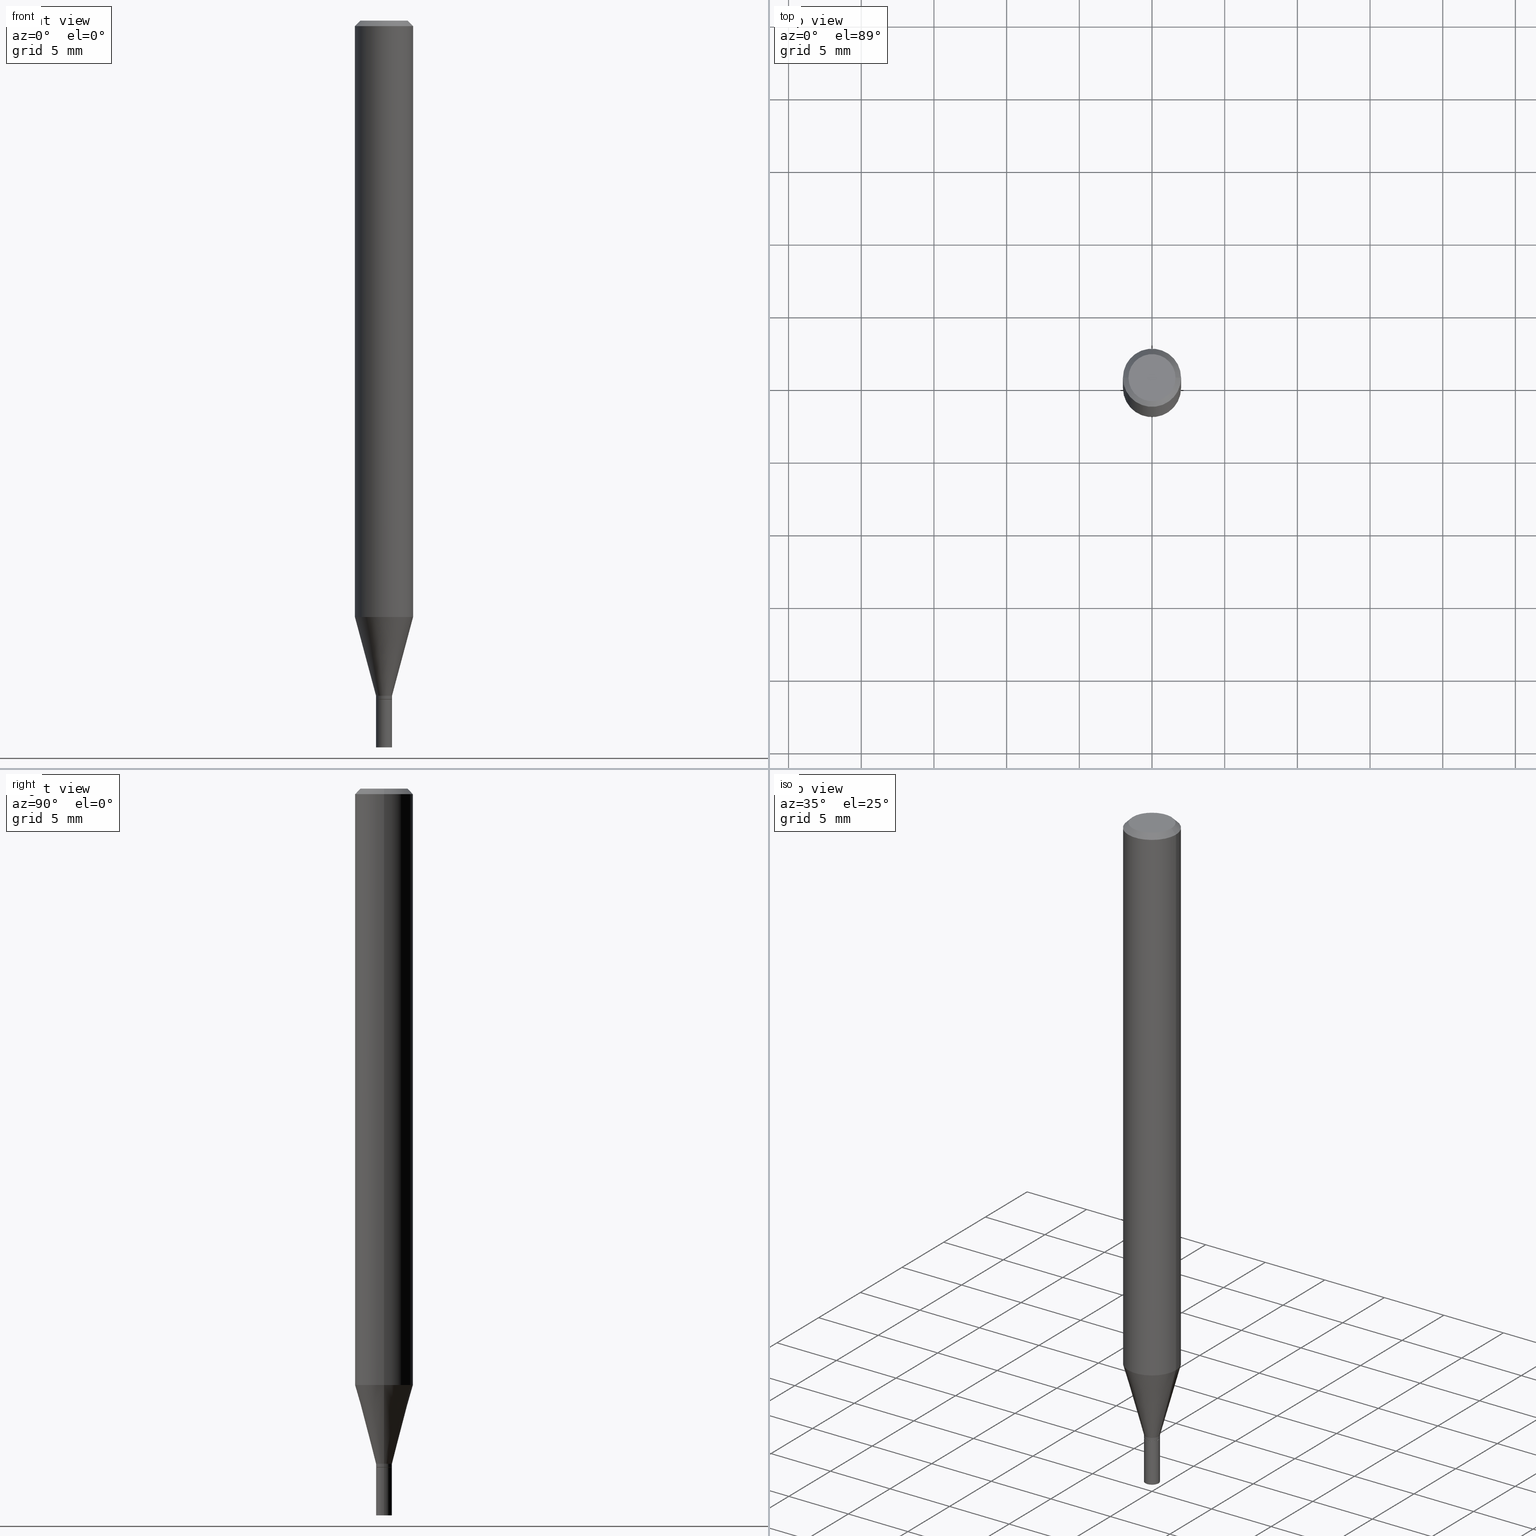
[diagram: canonical four-view strip — front | top / right | iso, engineering-drawing reading convention]
A machine part, canonical four-view strip (front | top / right | iso — engineering-drawing reading convention). The complete STEP part file that produces these views, byte-faithful:
ISO-10303-21;
HEADER;
FILE_DESCRIPTION (( 'STEP AP203' ),
    '1' );
FILE_NAME ('01884.STEP',
    '2024-03-20T02:25:17',
    ( '' ),
    ( '' ),
    'SwSTEP 2.0',
    'SolidWorks 2023',
    '' );
FILE_SCHEMA (( 'CONFIG_CONTROL_DESIGN' ));
ENDSEC;

DATA;
#1 = ADVANCED_FACE ( 'NONE', ( #170 ), #202, .F. ) ;
#2 = DIRECTION ( 'NONE',  ( -2.445468806185136877E-29, 3.491481338843145188E-15, 1.000000000000000000 ) ) ;
#3 = VERTEX_POINT ( 'NONE', #408 ) ;
#4 = DIRECTION ( 'NONE',  ( 1.000000000000000000, -6.982962677686265922E-15, 4.876176775795935793E-29 ) ) ;
#5 = ORIENTED_EDGE ( 'NONE', *, *, #327, .T. ) ;
#6 = ADVANCED_FACE ( 'NONE', ( #345 ), #450, .T. ) ;
#7 = APPROVAL_ROLE ( '' ) ;
#8 = AXIS2_PLACEMENT_3D ( 'NONE', #25, #176, #140 ) ;
#9 = ORIENTED_EDGE ( 'NONE', *, *, #306, .F. ) ;
#10 = VERTEX_POINT ( 'NONE', #168 ) ;
#11 = AXIS2_PLACEMENT_3D ( 'NONE', #279, #52, #412 ) ;
#12 = DATE_AND_TIME ( #45, #400 ) ;
#13 = ADVANCED_BREP_SHAPE_REPRESENTATION ( '01884', ( #180, #21, #11 ), #300 ) ;
#14 = DIRECTION ( 'NONE',  ( -1.000000000000000000, 6.982962677686265922E-15, 0.000000000000000000 ) ) ;
#15 = CYLINDRICAL_SURFACE ( 'NONE', #464, 0.07875000000000000056 ) ;
#16 = ADVANCED_FACE ( 'NONE', ( #382 ), #119, .T. ) ;
#17 = DIRECTION ( 'NONE',  ( -2.445468806185136597E-29, 3.491481338843145583E-15, 1.000000000000000000 ) ) ;
#18 = AXIS2_PLACEMENT_3D ( 'NONE', #405, #430, #36 ) ;
#19 = DIRECTION ( 'NONE',  ( 2.445468806185136597E-29, -3.491481338843145583E-15, -1.000000000000000000 ) ) ;
#20 = CARTESIAN_POINT ( 'NONE',  ( 0.07875000000000000056, -5.926364374071552647E-16, -0.01499999999999999944 ) ) ;
#21 = MANIFOLD_SOLID_BREP ( 'Body-Move/Copy2[2]', #198 ) ;
#22 = AXIS2_PLACEMENT_3D ( 'NONE', #133, #46, #283 ) ;
#23 = ADVANCED_FACE ( 'NONE', ( #130 ), #15, .T. ) ;
#24 = ADVANCED_FACE ( 'NONE', ( #200 ), #411, .F. ) ;
#25 = CARTESIAN_POINT ( 'NONE',  ( 4.471539712109521882E-29, -6.384173628074691775E-15, -1.828500000000000014 ) ) ;
#26 = CC_DESIGN_PERSON_AND_ORGANIZATION_ASSIGNMENT ( #379, #123, ( #74 ) ) ;
#27 = DIRECTION ( 'NONE',  ( 1.000000000000000000, -6.982962677686250144E-15, 0.000000000000000000 ) ) ;
#28 = VECTOR ( 'NONE', #456, 39.37007874015748143 ) ;
#29 = EDGE_CURVE ( 'NONE', #271, #3, #280, .T. ) ;
#30 = PLANE ( 'NONE',  #186 ) ;
#31 = DIRECTION ( 'NONE',  ( 1.000000000000000000, -6.982962677686269866E-15, 0.000000000000000000 ) ) ;
#32 = EDGE_CURVE ( 'NONE', #71, #39, #329, .T. ) ;
#33 = CARTESIAN_POINT ( 'NONE',  ( 0.02165000000000047442, -6.535354770046602662E-15, -1.828500000000000014 ) ) ;
#34 = ORIENTED_EDGE ( 'NONE', *, *, #227, .F. ) ;
#35 = CIRCLE ( 'NONE', #374, 0.07875000000000000056 ) ;
#36 = DIRECTION ( 'NONE',  ( 1.000000000000000000, -6.982962677686265922E-15, 4.876176775795935232E-29 ) ) ;
#37 = EDGE_LOOP ( 'NONE', ( #34, #348, #121, #254 ) ) ;
#38 = CARTESIAN_POINT ( 'NONE',  ( 1.854924686453612983E-44, -2.648340846275329000E-30, -7.585149652132525386E-16 ) ) ;
#39 = VERTEX_POINT ( 'NONE', #277 ) ;
#40 = DIRECTION ( 'NONE',  ( 1.000000000000000000, -6.982962677686265922E-15, 4.947888571036530338E-29 ) ) ;
#41 = ORIENTED_EDGE ( 'NONE', *, *, #179, .F. ) ;
#42 = CIRCLE ( 'NONE', #233, 0.02114999999999999519 ) ;
#43 = CARTESIAN_POINT ( 'NONE',  ( 4.496238947051993332E-29, -6.419437589597009303E-15, -1.838600000000000456 ) ) ;
#44 = ORIENTED_EDGE ( 'NONE', *, *, #384, .T. ) ;
#45 = CALENDAR_DATE ( 2024, 19, 3 ) ;
#46 = DIRECTION ( 'NONE',  ( 2.445468806185136597E-29, -3.491481338843145583E-15, -1.000000000000000000 ) ) ;
#47 = APPLICATION_PROTOCOL_DEFINITION ( 'international standard', 'config_control_design', 1994, #135 ) ;
#48 = VECTOR ( 'NONE', #178, 39.37007874015748143 ) ;
#49 = CARTESIAN_POINT ( 'NONE',  ( 0.07875000000000001443, -6.190046912603718484E-15, -1.615399898887819097 ) ) ;
#50 = AXIS2_PLACEMENT_3D ( 'NONE', #386, #64, #387 ) ;
#51 = DIRECTION ( 'NONE',  ( -1.000000000000000000, 6.982962677686265922E-15, -4.876176775795935793E-29 ) ) ;
#52 = DIRECTION ( 'NONE',  ( 0.000000000000000000, 0.000000000000000000, 1.000000000000000000 ) ) ;
#53 = DIRECTION ( 'NONE',  ( -2.445468806185136597E-29, 3.491481338843145583E-15, 1.000000000000000000 ) ) ;
#54 = AXIS2_PLACEMENT_3D ( 'NONE', #354, #104, #31 ) ;
#55 = CALENDAR_DATE ( 2024, 19, 3 ) ;
#56 = DIRECTION ( 'NONE',  ( 0.7071067811865656694, -2.468850131082446387E-15, 0.7071067811865294761 ) ) ;
#57 = ADVANCED_FACE ( 'NONE', ( #90 ), #445, .T. ) ;
#58 = VECTOR ( 'NONE', #215, 39.37007874015748854 ) ;
#59 = CARTESIAN_POINT ( 'NONE',  ( 0.000000000000000000, 0.000000000000000000, 0.000000000000000000 ) ) ;
#60 = AXIS2_PLACEMENT_3D ( 'NONE', #166, #17, #212 ) ;
#61 = LINE ( 'NONE', #173, #28 ) ;
#62 = ORIENTED_EDGE ( 'NONE', *, *, #303, .T. ) ;
#63 = EDGE_CURVE ( 'NONE', #10, #190, #88, .T. ) ;
#64 = DIRECTION ( 'NONE',  ( -2.445468806185136597E-29, 3.491481338843145583E-15, 1.000000000000000000 ) ) ;
#65 = CARTESIAN_POINT ( 'NONE',  ( 0.07875000000000000056, -6.022805309504406221E-16, -0.01499999999999999944 ) ) ;
#66 = AXIS2_PLACEMENT_3D ( 'NONE', #323, #390, #360 ) ;
#67 = CONICAL_SURFACE ( 'NONE', #207, 0.02165000000000047442, 0.2617993877991499074 ) ;
#68 = DIRECTION ( 'NONE',  ( -2.445468806185136597E-29, 3.491481338843145583E-15, 1.000000000000000000 ) ) ;
#69 = VERTEX_POINT ( 'NONE', #49 ) ;
#70 = DIRECTION ( 'NONE',  ( -2.445468806185136597E-29, 3.491481338843145583E-15, 1.000000000000000000 ) ) ;
#71 = VERTEX_POINT ( 'NONE', #314 ) ;
#72 = DIRECTION ( 'NONE',  ( -2.445468806185136597E-29, 3.491481338843145583E-15, 1.000000000000000000 ) ) ;
#73 = ORIENTED_EDGE ( 'NONE', *, *, #356, .T. ) ;
#74 = PRODUCT_DEFINITION_FORMATION_WITH_SPECIFIED_SOURCE ( 'ANY', '', #84, .NOT_KNOWN. ) ;
#75 = ADVANCED_FACE ( 'NONE', ( #242 ), #67, .T. ) ;
#76 = CARTESIAN_POINT ( 'NONE',  ( 0.07875000000000000056, -5.499083108677934443E-16, 3.839989210939299016E-30 ) ) ;
#77 = ORIENTED_EDGE ( 'NONE', *, *, #103, .T. ) ;
#78 = VECTOR ( 'NONE', #250, 39.37007874015748143 ) ;
#79 = CARTESIAN_POINT ( 'NONE',  ( -0.06375000000000000111, 4.713499807438215436E-16, -7.585149652132556940E-16 ) ) ;
#80 = ORIENTED_EDGE ( 'NONE', *, *, #426, .F. ) ;
#81 = DIRECTION ( 'NONE',  ( -2.445468806185136597E-29, 3.491481338843145583E-15, 1.000000000000000000 ) ) ;
#82 = ORIENTED_EDGE ( 'NONE', *, *, #32, .T. ) ;
#83 = AXIS2_PLACEMENT_3D ( 'NONE', #106, #247, #357 ) ;
#84 = PRODUCT ( '01884', '01884', '', ( #163 ) ) ;
#85 = ORIENTED_EDGE ( 'NONE', *, *, #426, .T. ) ;
#86 = AXIS2_PLACEMENT_3D ( 'NONE', #417, #317, #51 ) ;
#87 = LENGTH_MEASURE_WITH_UNIT ( LENGTH_MEASURE( 0.02539999999999999897 ), #149 );
#88 = LINE ( 'NONE', #239, #298 ) ;
#89 = APPROVAL_STATUS ( 'not_yet_approved' ) ;
#90 = FACE_OUTER_BOUND ( 'NONE', #439, .T. ) ;
#91 = LOCAL_TIME ( 22, 25, 17.00000000000000000, #208 ) ;
#92 = COORDINATED_UNIVERSAL_TIME_OFFSET ( 5, 0, .BEHIND. ) ;
#93 = CARTESIAN_POINT ( 'NONE',  ( 4.813905344975441835E-29, -6.872981015512731707E-15, -1.968500000000000139 ) ) ;
#94 = DATE_AND_TIME ( #126, #91 ) ;
#95 = DIRECTION ( 'NONE',  ( -0.2588190451025211836, 5.211531920934547886E-15, 0.9659258262890679791 ) ) ;
#96 = DIRECTION ( 'NONE',  ( -2.445468806185136597E-29, 3.491481338843145583E-15, 1.000000000000000000 ) ) ;
#97 = AXIS2_PLACEMENT_3D ( 'NONE', #261, #120, #194 ) ;
#98 = CARTESIAN_POINT ( 'NONE',  ( -0.02164999999999999564, 1.538325022920616592E-16, -1.064949447040186851E-30 ) ) ;
#99 = EDGE_CURVE ( 'NONE', #305, #432, #350, .T. ) ;
#100 = ORIENTED_EDGE ( 'NONE', *, *, #303, .F. ) ;
#101 = CARTESIAN_POINT ( 'NONE',  ( -0.07875000000000000056, 5.595524044110789003E-16, -3.873661383575737792E-30 ) ) ;
#102 = AXIS2_PLACEMENT_3D ( 'NONE', #93, #246, #385 ) ;
#103 = EDGE_CURVE ( 'NONE', #190, #432, #214, .T. ) ;
#104 = DIRECTION ( 'NONE',  ( -2.445468806185136597E-29, 3.491481338843145583E-15, 1.000000000000000000 ) ) ;
#105 = ORIENTED_EDGE ( 'NONE', *, *, #196, .T. ) ;
#106 = CARTESIAN_POINT ( 'NONE',  ( 4.471539712109521882E-29, -6.384173628074691775E-15, -1.828500000000000014 ) ) ;
#107 = AXIS2_PLACEMENT_3D ( 'NONE', #172, #389, #27 ) ;
#108 = DIRECTION ( 'NONE',  ( 1.000000000000000000, -6.982962677686245411E-15, 0.000000000000000000 ) ) ;
#109 = EDGE_LOOP ( 'NONE', ( #363, #100 ) ) ;
#110 = EDGE_CURVE ( 'NONE', #190, #271, #61, .T. ) ;
#111 = CARTESIAN_POINT ( 'NONE',  ( 0.000000000000000000, 0.000000000000000000, 0.000000000000000000 ) ) ;
#112 = EDGE_LOOP ( 'NONE', ( #308, #339, #160, #80 ) ) ;
#113 = CYLINDRICAL_SURFACE ( 'NONE', #18, 0.07875000000000000056 ) ;
#114 = CC_DESIGN_APPROVAL ( #187, ( #346 ) ) ;
#115 = ORIENTED_EDGE ( 'NONE', *, *, #245, .F. ) ;
#116 = APPROVAL_PERSON_ORGANIZATION ( #159, #122, #407 ) ;
#117 = DIRECTION ( 'NONE',  ( 1.000000000000000000, -6.982962677686269866E-15, 0.000000000000000000 ) ) ;
#118 = ORIENTED_EDGE ( 'NONE', *, *, #110, .F. ) ;
#119 = CONICAL_SURFACE ( 'NONE', #22, 0.07875000000000000056, 0.7853981633974735921 ) ;
#120 = DIRECTION ( 'NONE',  ( -2.445468806185136597E-29, 3.491481338843145583E-15, 1.000000000000000000 ) ) ;
#121 = ORIENTED_EDGE ( 'NONE', *, *, #245, .T. ) ;
#122 = APPROVAL ( #307, 'UNSPECIFIED' ) ;
#123 = PERSON_AND_ORGANIZATION_ROLE ( 'creator' ) ;
#124 = EDGE_LOOP ( 'NONE', ( #336, #302, #85, #156 ) ) ;
#125 = AXIS2_PLACEMENT_3D ( 'NONE', #181, #225, #188 ) ;
#126 = CALENDAR_DATE ( 2024, 19, 3 ) ;
#127 = DIRECTION ( 'NONE',  ( -2.445468806185136597E-29, 3.491481338843145583E-15, 1.000000000000000000 ) ) ;
#128 = ORIENTED_EDGE ( 'NONE', *, *, #306, .T. ) ;
#129 = APPLICATION_PROTOCOL_DEFINITION ( 'international standard', 'config_control_design', 1994, #195 ) ;
#130 = FACE_OUTER_BOUND ( 'NONE', #351, .T. ) ;
#131 = CIRCLE ( 'NONE', #107, 0.02165000000000019340 ) ;
#132 = COORDINATED_UNIVERSAL_TIME_OFFSET ( 5, 0, .BEHIND. ) ;
#133 = CARTESIAN_POINT ( 'NONE',  ( 3.668203209277705088E-31, -5.237222008264718399E-17, -0.01499999999999999944 ) ) ;
#134 = DIRECTION ( 'NONE',  ( 1.000000000000000000, -6.982962677686265922E-15, 4.876176775795935793E-29 ) ) ;
#135 = APPLICATION_CONTEXT ( 'configuration controlled 3d designs of mechanical parts and assemblies' ) ;
#136 = EDGE_CURVE ( 'NONE', #39, #435, #423, .T. ) ;
#137 = DIRECTION ( 'NONE',  ( 1.000000000000000000, -6.982962677686261977E-15, 0.000000000000000000 ) ) ;
#138 = EDGE_CURVE ( 'NONE', #3, #376, #291, .T. ) ;
#139 = CARTESIAN_POINT ( 'NONE',  ( 3.950410062244785597E-29, -5.640138601735924349E-15, -1.615399898887819097 ) ) ;
#140 = DIRECTION ( 'NONE',  ( 1.000000000000000000, -6.982962677686249356E-15, 0.000000000000000000 ) ) ;
#141 = DIRECTION ( 'NONE',  ( 1.000000000000000000, -6.982962677686265922E-15, 0.000000000000000000 ) ) ;
#142 = ORIENTED_EDGE ( 'NONE', *, *, #99, .T. ) ;
#143 = DIRECTION ( 'NONE',  ( -2.438088387897960049E-29, 3.491481338843145188E-15, 1.000000000000000000 ) ) ;
#144 = VECTOR ( 'NONE', #332, 39.37007874015748854 ) ;
#145 = CC_DESIGN_APPROVAL ( #122, ( #203 ) ) ;
#146 = CARTESIAN_POINT ( 'NONE',  ( 4.496238947051993332E-29, -6.419437589597009303E-15, -1.838600000000000456 ) ) ;
#147 = EDGE_CURVE ( 'NONE', #216, #271, #275, .T. ) ;
#148 = EDGE_LOOP ( 'NONE', ( #449, #388 ) ) ;
#149 =( LENGTH_UNIT ( ) NAMED_UNIT ( * ) SI_UNIT ( $, .METRE. ) );
#150 = EDGE_LOOP ( 'NONE', ( #9, #229, #44, #115 ) ) ;
#151 = CARTESIAN_POINT ( 'NONE',  ( 4.496238947051993332E-29, -6.419437589597009303E-15, -1.838600000000000456 ) ) ;
#152 = VECTOR ( 'NONE', #2, 39.37007874015748143 ) ;
#153 = ORIENTED_EDGE ( 'NONE', *, *, #327, .F. ) ;
#154 = DESIGN_CONTEXT ( 'detailed design', #195, 'design' ) ;
#155 = DIRECTION ( 'NONE',  ( 1.000000000000000000, -6.982962677686265922E-15, 0.000000000000000000 ) ) ;
#156 = ORIENTED_EDGE ( 'NONE', *, *, #222, .F. ) ;
#157 = CC_DESIGN_PERSON_AND_ORGANIZATION_ASSIGNMENT ( #343, #377, ( #74 ) ) ;
#158 = ADVANCED_FACE ( 'NONE', ( #249 ), #30, .F. ) ;
#159 = PERSON_AND_ORGANIZATION ( #175, #420 ) ;
#160 = ORIENTED_EDGE ( 'NONE', *, *, #263, .F. ) ;
#161 = PERSON_AND_ORGANIZATION_ROLE ( 'design_owner' ) ;
#162 = CARTESIAN_POINT ( 'NONE',  ( 0.000000000000000000, 0.000000000000000000, 0.000000000000000000 ) ) ;
#163 = MECHANICAL_CONTEXT ( 'NONE', #135, 'mechanical' ) ;
#164 = DIRECTION ( 'NONE',  ( 1.000000000000000000, -6.982962677686267499E-15, 4.876176775795936353E-29 ) ) ;
#165 = PERSON_AND_ORGANIZATION ( #175, #420 ) ;
#166 = CARTESIAN_POINT ( 'NONE',  ( 4.495016212648899970E-29, -6.417691848927587010E-15, -1.838100000000000289 ) ) ;
#167 = SECURITY_CLASSIFICATION_LEVEL ( 'unclassified' ) ;
#168 = CARTESIAN_POINT ( 'NONE',  ( -0.02114999999999999519, -6.266508573809636109E-15, -1.838600000000000456 ) ) ;
#169 = CONICAL_SURFACE ( 'NONE', #292, 0.02114999999999999519, 0.7853981633974739252 ) ;
#170 = FACE_OUTER_BOUND ( 'NONE', #234, .T. ) ;
#171 = AXIS2_PLACEMENT_3D ( 'NONE', #415, #19, #14 ) ;
#172 = CARTESIAN_POINT ( 'NONE',  ( 4.495016212648899970E-29, -6.417691848927587010E-15, -1.838100000000000289 ) ) ;
#173 = CARTESIAN_POINT ( 'NONE',  ( -0.02165000000000033564, 1.538325022920640751E-16, -1.064949447040203492E-30 ) ) ;
#174 = APPROVAL_PERSON_ORGANIZATION ( #199, #244, #7 ) ;
#175 = PERSON ( 'UNSPECIFIED', 'UNSPECIFIED', 'UNSPECIFIED', ('UNSPECIFIED'), ('UNSPECIFIED'), ('UNSPECIFIED') ) ;
#176 = DIRECTION ( 'NONE',  ( -2.445468806185136597E-29, 3.491481338843145583E-15, 1.000000000000000000 ) ) ;
#177 = LINE ( 'NONE', #326, #48 ) ;
#178 = DIRECTION ( 'NONE',  ( -2.445468806185136877E-29, 3.491481338843145188E-15, 1.000000000000000000 ) ) ;
#179 = EDGE_CURVE ( 'NONE', #265, #435, #444, .T. ) ;
#180 = MANIFOLD_SOLID_BREP ( 'Body-Move/Copy2[1]', #315 ) ;
#181 = CARTESIAN_POINT ( 'NONE',  ( 4.496238947051992772E-29, -6.419437589597007725E-15, -1.838600000000000234 ) ) ;
#182 = CIRCLE ( 'NONE', #50, 0.07875000000000000056 ) ;
#183 = EDGE_LOOP ( 'NONE', ( #118, #77, #334, #224 ) ) ;
#184 = CARTESIAN_POINT ( 'NONE',  ( -0.02164999999999999564, -6.492376800262808008E-15, -1.838600000000000234 ) ) ;
#185 = VERTEX_POINT ( 'NONE', #65 ) ;
#186 = AXIS2_PLACEMENT_3D ( 'NONE', #290, #251, #422 ) ;
#187 = APPROVAL ( #89, 'UNSPECIFIED' ) ;
#188 = DIRECTION ( 'NONE',  ( 1.000000000000000000, -6.982962677686269866E-15, 0.000000000000000000 ) ) ;
#189 = EDGE_CURVE ( 'NONE', #71, #265, #177, .T. ) ;
#190 = VERTEX_POINT ( 'NONE', #330 ) ;
#191 = FACE_OUTER_BOUND ( 'NONE', #109, .T. ) ;
#192 = AXIS2_PLACEMENT_3D ( 'NONE', #59, #68, #452 ) ;
#193 = ORIENTED_EDGE ( 'NONE', *, *, #370, .F. ) ;
#194 = DIRECTION ( 'NONE',  ( 1.000000000000000000, -6.982962677686249356E-15, 0.000000000000000000 ) ) ;
#195 = APPLICATION_CONTEXT ( 'configuration controlled 3d designs of mechanical parts and assemblies' ) ;
#196 = EDGE_CURVE ( 'NONE', #432, #190, #131, .T. ) ;
#197 = VERTEX_POINT ( 'NONE', #361 ) ;
#198 = CLOSED_SHELL ( 'NONE', ( #396, #373, #6, #367, #75, #294, #23, #16, #24, #1, #278, #241 ) ) ;
#199 = PERSON_AND_ORGANIZATION ( #175, #420 ) ;
#200 = FACE_OUTER_BOUND ( 'NONE', #372, .T. ) ;
#201 = PERSON_AND_ORGANIZATION ( #175, #420 ) ;
#202 = PLANE ( 'NONE',  #230 ) ;
#203 = SECURITY_CLASSIFICATION ( '', '', #167 ) ;
#204 = CC_DESIGN_APPROVAL ( #244, ( #74 ) ) ;
#205 = PRODUCT_DEFINITION_SHAPE ( 'NONE', 'NONE',  #346 ) ;
#206 = CC_DESIGN_SECURITY_CLASSIFICATION ( #203, ( #74 ) ) ;
#207 = AXIS2_PLACEMENT_3D ( 'NONE', #413, #53, #210 ) ;
#208 = COORDINATED_UNIVERSAL_TIME_OFFSET ( 5, 0, .BEHIND. ) ;
#209 = APPROVAL_DATE_TIME ( #438, #187 ) ;
#210 = DIRECTION ( 'NONE',  ( 1.000000000000000000, -6.982962677686249356E-15, 0.000000000000000000 ) ) ;
#211 = DATE_TIME_ROLE ( 'classification_date' ) ;
#212 = DIRECTION ( 'NONE',  ( 1.000000000000000000, -6.982962677686250144E-15, 0.000000000000000000 ) ) ;
#213 = AXIS2_PLACEMENT_3D ( 'NONE', #151, #266, #108 ) ;
#214 = CIRCLE ( 'NONE', #60, 0.02165000000000019340 ) ;
#215 = DIRECTION ( 'NONE',  ( 0.7071067811865653363, -7.319954787623314421E-15, -0.7071067811865295871 ) ) ;
#216 = VERTEX_POINT ( 'NONE', #324 ) ;
#217 = LINE ( 'NONE', #20, #58 ) ;
#218 = CYLINDRICAL_SURFACE ( 'NONE', #66, 0.02165000000000033564 ) ;
#219 = CIRCLE ( 'NONE', #325, 0.06375000000000000111 ) ;
#220 = DIRECTION ( 'NONE',  ( -2.445468806185136877E-29, 3.491481338843145188E-15, 1.000000000000000000 ) ) ;
#221 = DIRECTION ( 'NONE',  ( -2.445468806185136597E-29, 3.491481338843145583E-15, 1.000000000000000000 ) ) ;
#222 = EDGE_CURVE ( 'NONE', #3, #69, #182, .T. ) ;
#223 = DIRECTION ( 'NONE',  ( -2.445468806185136597E-29, 3.491481338843145583E-15, 1.000000000000000000 ) ) ;
#224 = ORIENTED_EDGE ( 'NONE', *, *, #236, .F. ) ;
#225 = DIRECTION ( 'NONE',  ( -2.445468806185136597E-29, 3.491481338843145583E-15, 1.000000000000000000 ) ) ;
#226 = ORIENTED_EDGE ( 'NONE', *, *, #384, .F. ) ;
#227 = EDGE_CURVE ( 'NONE', #197, #185, #217, .T. ) ;
#228 = DIRECTION ( 'NONE',  ( 1.000000000000000000, -6.982962677686245411E-15, 0.000000000000000000 ) ) ;
#229 = ORIENTED_EDGE ( 'NONE', *, *, #227, .T. ) ;
#230 = AXIS2_PLACEMENT_3D ( 'NONE', #443, #312, #134 ) ;
#231 = ORIENTED_EDGE ( 'NONE', *, *, #63, .T. ) ;
#232 = FACE_OUTER_BOUND ( 'NONE', #429, .T. ) ;
#233 = AXIS2_PLACEMENT_3D ( 'NONE', #43, #70, #228 ) ;
#234 = EDGE_LOOP ( 'NONE', ( #153, #463 ) ) ;
#235 = COORDINATED_UNIVERSAL_TIME_OFFSET ( 5, 0, .BEHIND. ) ;
#236 = EDGE_CURVE ( 'NONE', #271, #216, #359, .T. ) ;
#237 = EDGE_LOOP ( 'NONE', ( #437, #333, #226, #369 ) ) ;
#238 = APPROVAL_DATE_TIME ( #276, #244 ) ;
#239 = CARTESIAN_POINT ( 'NONE',  ( -0.02114999999999999519, -6.269157800983748098E-15, -1.838600000000000456 ) ) ;
#240 = CARTESIAN_POINT ( 'NONE',  ( 0.02114999999999999519, -6.567127250230073238E-15, -1.838600000000000456 ) ) ;
#241 = ADVANCED_FACE ( 'NONE', ( #284 ), #218, .T. ) ;
#242 = FACE_OUTER_BOUND ( 'NONE', #112, .T. ) ;
#243 = VECTOR ( 'NONE', #220, 39.37007874015748143 ) ;
#244 = APPROVAL ( #273, 'UNSPECIFIED' ) ;
#245 = EDGE_CURVE ( 'NONE', #466, #376, #358, .T. ) ;
#246 = DIRECTION ( 'NONE',  ( -2.445468806185136597E-29, 3.491481338843145583E-15, 1.000000000000000000 ) ) ;
#247 = DIRECTION ( 'NONE',  ( -2.445468806185136597E-29, 3.491481338843145583E-15, 1.000000000000000000 ) ) ;
#248 = LOCAL_TIME ( 22, 25, 17.00000000000000000, #132 ) ;
#249 = FACE_OUTER_BOUND ( 'NONE', #148, .T. ) ;
#250 = DIRECTION ( 'NONE',  ( -2.445468806185136877E-29, 3.491481338843145188E-15, 1.000000000000000000 ) ) ;
#251 = DIRECTION ( 'NONE',  ( 2.438088387897960049E-29, -3.491481338843145188E-15, -1.000000000000000000 ) ) ;
#252 = AXIS2_PLACEMENT_3D ( 'NONE', #421, #221, #286 ) ;
#253 = CARTESIAN_POINT ( 'NONE',  ( 0.02164999999999999564, -6.570618731568915456E-15, -1.838600000000000234 ) ) ;
#254 = ORIENTED_EDGE ( 'NONE', *, *, #256, .T. ) ;
#255 = CARTESIAN_POINT ( 'NONE',  ( 3.668203209277705088E-31, -5.237222008264718399E-17, -0.01499999999999999944 ) ) ;
#256 = EDGE_CURVE ( 'NONE', #376, #185, #35, .T. ) ;
#257 = CARTESIAN_POINT ( 'NONE',  ( -0.07875000000000000056, -2.286703006498207110E-15, -0.01499999999999999944 ) ) ;
#258 = EDGE_LOOP ( 'NONE', ( #395, #62, #342, #459 ) ) ;
#259 = DIMENSIONAL_EXPONENTS ( 1.000000000000000000, 0.000000000000000000, 0.000000000000000000, 0.000000000000000000, 0.000000000000000000, 0.000000000000000000, 0.000000000000000000 ) ;
#260 = CIRCLE ( 'NONE', #252, 0.02114999999999999519 ) ;
#261 = CARTESIAN_POINT ( 'NONE',  ( 4.471539712109521882E-29, -6.384173628074691775E-15, -1.828500000000000014 ) ) ;
#262 = ORIENTED_EDGE ( 'NONE', *, *, #63, .F. ) ;
#263 = EDGE_CURVE ( 'NONE', #69, #3, #425, .T. ) ;
#264 = LINE ( 'NONE', #33, #144 ) ;
#265 = VERTEX_POINT ( 'NONE', #253 ) ;
#266 = DIRECTION ( 'NONE',  ( -2.445468806185136597E-29, 3.491481338843145583E-15, 1.000000000000000000 ) ) ;
#267 = EDGE_LOOP ( 'NONE', ( #5, #231, #287, #366 ) ) ;
#268 =( NAMED_UNIT ( * ) PLANE_ANGLE_UNIT ( ) SI_UNIT ( $, .RADIAN. ) );
#269 = ADVANCED_FACE ( 'NONE', ( #392 ), #289, .T. ) ;
#270 = CONICAL_SURFACE ( 'NONE', #213, 0.02114999999999999519, 0.7853981633974739252 ) ;
#271 = VERTEX_POINT ( 'NONE', #460 ) ;
#272 = EDGE_CURVE ( 'NONE', #10, #305, #260, .T. ) ;
#273 = APPROVAL_STATUS ( 'not_yet_approved' ) ;
#274 = ORIENTED_EDGE ( 'NONE', *, *, #272, .T. ) ;
#275 = CIRCLE ( 'NONE', #8, 0.02165000000000047442 ) ;
#276 = DATE_AND_TIME ( #55, #399 ) ;
#277 = CARTESIAN_POINT ( 'NONE',  ( -0.02164999999999999564, -6.492376800262808008E-15, -1.968500000000000139 ) ) ;
#278 = ADVANCED_FACE ( 'NONE', ( #232 ), #169, .T. ) ;
#279 = CARTESIAN_POINT ( 'NONE',  ( 0.000000000000000000, 0.000000000000000000, 0.000000000000000000 ) ) ;
#280 = LINE ( 'NONE', #448, #457 ) ;
#281 = CC_DESIGN_DATE_AND_TIME_ASSIGNMENT ( #416, #211, ( #203 ) ) ;
#282 = CALENDAR_DATE ( 2024, 19, 3 ) ;
#283 = DIRECTION ( 'NONE',  ( -1.000000000000000000, 6.982962677686265922E-15, 0.000000000000000000 ) ) ;
#284 = FACE_OUTER_BOUND ( 'NONE', #183, .T. ) ;
#285 = AXIS2_PLACEMENT_3D ( 'NONE', #383, #127, #164 ) ;
#286 = DIRECTION ( 'NONE',  ( 1.000000000000000000, -6.982962677686245411E-15, 0.000000000000000000 ) ) ;
#287 = ORIENTED_EDGE ( 'NONE', *, *, #196, .F. ) ;
#288 = APPROVAL_PERSON_ORGANIZATION ( #310, #187, #441 ) ;
#289 = CYLINDRICAL_SURFACE ( 'NONE', #192, 0.02164999999999999564 ) ;
#290 = CARTESIAN_POINT ( 'NONE',  ( 1.511811419719525975E-16, 0.02164999999999357716, -1.838600000000000234 ) ) ;
#291 = LINE ( 'NONE', #101, #78 ) ;
#292 = AXIS2_PLACEMENT_3D ( 'NONE', #146, #81, #297 ) ;
#293 = CARTESIAN_POINT ( 'NONE',  ( 0.02165000000000033564, -1.511811419719099991E-16, 1.055692271959836253E-30 ) ) ;
#294 = ADVANCED_FACE ( 'NONE', ( #295 ), #337, .T. ) ;
#295 = FACE_OUTER_BOUND ( 'NONE', #124, .T. ) ;
#296 = ORIENTED_EDGE ( 'NONE', *, *, #418, .T. ) ;
#297 = DIRECTION ( 'NONE',  ( 1.000000000000000000, -6.982962677686245411E-15, 0.000000000000000000 ) ) ;
#298 = VECTOR ( 'NONE', #380, 39.37007874015748143 ) ;
#299 = EDGE_LOOP ( 'NONE', ( #105, #355, #404, #193 ) ) ;
#300 =( GEOMETRIC_REPRESENTATION_CONTEXT ( 3 ) GLOBAL_UNCERTAINTY_ASSIGNED_CONTEXT ( ( #453 ) ) GLOBAL_UNIT_ASSIGNED_CONTEXT ( ( #313, #268, #316 ) ) REPRESENTATION_CONTEXT ( 'NONE', 'WORKASPACE' ) );
#301 = PLANE ( 'NONE',  #320 ) ;
#302 = ORIENTED_EDGE ( 'NONE', *, *, #236, .T. ) ;
#303 = EDGE_CURVE ( 'NONE', #39, #71, #455, .T. ) ;
#304 = CYLINDRICAL_SURFACE ( 'NONE', #364, 0.02165000000000033564 ) ;
#305 = VERTEX_POINT ( 'NONE', #393 ) ;
#306 = EDGE_CURVE ( 'NONE', #197, #466, #219, .T. ) ;
#307 = APPROVAL_STATUS ( 'not_yet_approved' ) ;
#308 = ORIENTED_EDGE ( 'NONE', *, *, #147, .T. ) ;
#309 = PRODUCT_RELATED_PRODUCT_CATEGORY ( 'detail', '', ( #84 ) ) ;
#310 = PERSON_AND_ORGANIZATION ( #175, #420 ) ;
#311 = AXIS2_PLACEMENT_3D ( 'NONE', #255, #223, #155 ) ;
#312 = DIRECTION ( 'NONE',  ( -2.438088387897960049E-29, 3.491481338843145188E-15, 1.000000000000000000 ) ) ;
#313 =( CONVERSION_BASED_UNIT ( 'INCH', #87 ) LENGTH_UNIT ( ) NAMED_UNIT ( #259 ) );
#314 = CARTESIAN_POINT ( 'NONE',  ( 0.02164999999999999564, -7.024162157484639438E-15, -1.968500000000000139 ) ) ;
#315 = CLOSED_SHELL ( 'NONE', ( #57, #352, #269, #158 ) ) ;
#316 =( NAMED_UNIT ( * ) SI_UNIT ( $, .STERADIAN. ) SOLID_ANGLE_UNIT ( ) );
#317 = DIRECTION ( 'NONE',  ( 2.438088387897960049E-29, -3.491481338843145188E-15, -1.000000000000000000 ) ) ;
#318 = PERSON_AND_ORGANIZATION ( #175, #420 ) ;
#319 = ORIENTED_EDGE ( 'NONE', *, *, #256, .F. ) ;
#320 = AXIS2_PLACEMENT_3D ( 'NONE', #338, #143, #4 ) ;
#321 = DIRECTION ( 'NONE',  ( -2.445468806185136597E-29, 3.491481338843145583E-15, 1.000000000000000000 ) ) ;
#322 = SHAPE_DEFINITION_REPRESENTATION ( #205, #13 ) ;
#323 = CARTESIAN_POINT ( 'NONE',  ( 0.000000000000000000, 0.000000000000000000, 0.000000000000000000 ) ) ;
#324 = CARTESIAN_POINT ( 'NONE',  ( 0.02165000000000047442, -6.535354770046602662E-15, -1.828500000000000014 ) ) ;
#325 = AXIS2_PLACEMENT_3D ( 'NONE', #38, #72, #40 ) ;
#326 = CARTESIAN_POINT ( 'NONE',  ( 0.02164999999999999564, -1.511811419719076571E-16, 1.055692271959819963E-30 ) ) ;
#327 = EDGE_CURVE ( 'NONE', #305, #10, #42, .T. ) ;
#328 = CARTESIAN_POINT ( 'NONE',  ( 3.668203209277705088E-31, -5.237222008264718399E-17, -0.01499999999999999944 ) ) ;
#329 = CIRCLE ( 'NONE', #102, 0.02164999999999999564 ) ;
#330 = CARTESIAN_POINT ( 'NONE',  ( -0.02165000000000019340, -6.263859346635524119E-15, -1.838100000000000289 ) ) ;
#331 = CIRCLE ( 'NONE', #125, 0.02164999999999999564 ) ;
#332 = DIRECTION ( 'NONE',  ( 0.2588190451025211836, 1.565188264969622559E-15, 0.9659258262890679791 ) ) ;
#333 = ORIENTED_EDGE ( 'NONE', *, *, #138, .T. ) ;
#334 = ORIENTED_EDGE ( 'NONE', *, *, #370, .T. ) ;
#335 = DIRECTION ( 'NONE',  ( -2.445468806185136597E-29, 3.491481338843145583E-15, 1.000000000000000000 ) ) ;
#336 = ORIENTED_EDGE ( 'NONE', *, *, #29, .F. ) ;
#337 = CONICAL_SURFACE ( 'NONE', #97, 0.02165000000000047442, 0.2617993877991499074 ) ;
#338 = CARTESIAN_POINT ( 'NONE',  ( 4.848906058769445083E-29, -6.822858001242805551E-15, -1.968500000000000139 ) ) ;
#339 = ORIENTED_EDGE ( 'NONE', *, *, #29, .T. ) ;
#340 = LINE ( 'NONE', #293, #353 ) ;
#341 = ORIENTED_EDGE ( 'NONE', *, *, #189, .F. ) ;
#342 = ORIENTED_EDGE ( 'NONE', *, *, #189, .T. ) ;
#343 = PERSON_AND_ORGANIZATION ( #175, #420 ) ;
#344 = LOCAL_TIME ( 22, 25, 17.00000000000000000, #347 ) ;
#345 = FACE_OUTER_BOUND ( 'NONE', #150, .T. ) ;
#346 = PRODUCT_DEFINITION ( 'UNKNOWN', '', #74, #154 ) ;
#347 = COORDINATED_UNIVERSAL_TIME_OFFSET ( 5, 0, .BEHIND. ) ;
#348 = ORIENTED_EDGE ( 'NONE', *, *, #418, .F. ) ;
#349 = DATE_TIME_ROLE ( 'creation_date' ) ;
#350 = LINE ( 'NONE', #240, #398 ) ;
#351 = EDGE_LOOP ( 'NONE', ( #406, #402, #73, #319 ) ) ;
#352 = ADVANCED_FACE ( 'NONE', ( #191 ), #301, .F. ) ;
#353 = VECTOR ( 'NONE', #427, 39.37007874015748143 ) ;
#354 = CARTESIAN_POINT ( 'NONE',  ( 4.496238947051992772E-29, -6.419437589597007725E-15, -1.838600000000000234 ) ) ;
#355 = ORIENTED_EDGE ( 'NONE', *, *, #110, .T. ) ;
#356 = EDGE_CURVE ( 'NONE', #69, #185, #365, .T. ) ;
#357 = DIRECTION ( 'NONE',  ( 1.000000000000000000, -6.982962677686249356E-15, 0.000000000000000000 ) ) ;
#358 = LINE ( 'NONE', #454, #433 ) ;
#359 = CIRCLE ( 'NONE', #83, 0.02165000000000047442 ) ;
#360 = DIRECTION ( 'NONE',  ( 1.000000000000000000, -6.982962677686265922E-15, 4.876176775795934672E-29 ) ) ;
#361 = CARTESIAN_POINT ( 'NONE',  ( 0.06375000000000000111, -5.149965923825465084E-16, -7.585149652132491859E-16 ) ) ;
#362 = DIRECTION ( 'NONE',  ( 1.000000000000000000, -6.982962677686265922E-15, 4.947888571036530338E-29 ) ) ;
#363 = ORIENTED_EDGE ( 'NONE', *, *, #32, .F. ) ;
#364 = AXIS2_PLACEMENT_3D ( 'NONE', #111, #401, #434 ) ;
#365 = LINE ( 'NONE', #76, #152 ) ;
#366 = ORIENTED_EDGE ( 'NONE', *, *, #99, .F. ) ;
#367 = ADVANCED_FACE ( 'NONE', ( #375 ), #113, .T. ) ;
#368 = FACE_OUTER_BOUND ( 'NONE', #299, .T. ) ;
#369 = ORIENTED_EDGE ( 'NONE', *, *, #356, .F. ) ;
#370 = EDGE_CURVE ( 'NONE', #432, #216, #340, .T. ) ;
#371 = CARTESIAN_POINT ( 'NONE',  ( 4.813905344975441835E-29, -6.872981015512731707E-15, -1.968500000000000139 ) ) ;
#372 = EDGE_LOOP ( 'NONE', ( #296, #128 ) ) ;
#373 = ADVANCED_FACE ( 'NONE', ( #428 ), #270, .T. ) ;
#374 = AXIS2_PLACEMENT_3D ( 'NONE', #328, #458, #141 ) ;
#375 = FACE_OUTER_BOUND ( 'NONE', #237, .T. ) ;
#376 = VERTEX_POINT ( 'NONE', #257 ) ;
#377 = PERSON_AND_ORGANIZATION_ROLE ( 'design_supplier' ) ;
#378 = ORIENTED_EDGE ( 'NONE', *, *, #103, .F. ) ;
#379 = PERSON_AND_ORGANIZATION ( #175, #420 ) ;
#380 = DIRECTION ( 'NONE',  ( -0.7071067811865656694, 7.493145998870420424E-15, 0.7071067811865294761 ) ) ;
#381 = CIRCLE ( 'NONE', #311, 0.07875000000000000056 ) ;
#382 = FACE_OUTER_BOUND ( 'NONE', #37, .T. ) ;
#383 = CARTESIAN_POINT ( 'NONE',  ( 0.000000000000000000, 0.000000000000000000, 0.000000000000000000 ) ) ;
#384 = EDGE_CURVE ( 'NONE', #185, #376, #381, .T. ) ;
#385 = DIRECTION ( 'NONE',  ( 1.000000000000000000, -6.982962677686269866E-15, 0.000000000000000000 ) ) ;
#386 = CARTESIAN_POINT ( 'NONE',  ( 3.950410062244785597E-29, -5.640138601735924349E-15, -1.615399898887819097 ) ) ;
#387 = DIRECTION ( 'NONE',  ( 1.000000000000000000, -6.982962677686261977E-15, 0.000000000000000000 ) ) ;
#388 = ORIENTED_EDGE ( 'NONE', *, *, #431, .T. ) ;
#389 = DIRECTION ( 'NONE',  ( -2.445468806185136597E-29, 3.491481338843145583E-15, 1.000000000000000000 ) ) ;
#390 = DIRECTION ( 'NONE',  ( -2.445468806185136597E-29, 3.491481338843145583E-15, 1.000000000000000000 ) ) ;
#391 = AXIS2_PLACEMENT_3D ( 'NONE', #139, #96, #137 ) ;
#392 = FACE_OUTER_BOUND ( 'NONE', #258, .T. ) ;
#393 = CARTESIAN_POINT ( 'NONE',  ( 0.02114999999999999519, -6.567127250230073238E-15, -1.838600000000000456 ) ) ;
#394 = CC_DESIGN_PERSON_AND_ORGANIZATION_ASSIGNMENT ( #318, #447, ( #203 ) ) ;
#395 = ORIENTED_EDGE ( 'NONE', *, *, #136, .F. ) ;
#396 = ADVANCED_FACE ( 'NONE', ( #368 ), #304, .T. ) ;
#397 = CIRCLE ( 'NONE', #461, 0.06375000000000000111 ) ;
#398 = VECTOR ( 'NONE', #56, 39.37007874015748143 ) ;
#399 = LOCAL_TIME ( 22, 25, 17.00000000000000000, #92 ) ;
#400 = LOCAL_TIME ( 22, 25, 17.00000000000000000, #235 ) ;
#401 = DIRECTION ( 'NONE',  ( -2.445468806185136597E-29, 3.491481338843145583E-15, 1.000000000000000000 ) ) ;
#402 = ORIENTED_EDGE ( 'NONE', *, *, #222, .T. ) ;
#403 = CARTESIAN_POINT ( 'NONE',  ( 0.02165000000000019340, -6.568872990899495530E-15, -1.838100000000000289 ) ) ;
#404 = ORIENTED_EDGE ( 'NONE', *, *, #147, .F. ) ;
#405 = CARTESIAN_POINT ( 'NONE',  ( 0.000000000000000000, 0.000000000000000000, 0.000000000000000000 ) ) ;
#406 = ORIENTED_EDGE ( 'NONE', *, *, #138, .F. ) ;
#407 = APPROVAL_ROLE ( '' ) ;
#408 = CARTESIAN_POINT ( 'NONE',  ( -0.07875000000000001443, -5.080586197324846336E-15, -1.615399898887819097 ) ) ;
#409 = PERSON_AND_ORGANIZATION_ROLE ( 'creator' ) ;
#410 = CC_DESIGN_PERSON_AND_ORGANIZATION_ASSIGNMENT ( #165, #161, ( #84 ) ) ;
#411 = PLANE ( 'NONE',  #86 ) ;
#412 = DIRECTION ( 'NONE',  ( 1.000000000000000000, 0.000000000000000000, 0.000000000000000000 ) ) ;
#413 = CARTESIAN_POINT ( 'NONE',  ( 4.471539712109521882E-29, -6.384173628074691775E-15, -1.828500000000000014 ) ) ;
#414 = CALENDAR_DATE ( 2024, 19, 3 ) ;
#415 = CARTESIAN_POINT ( 'NONE',  ( 3.668203209277705088E-31, -5.237222008264718399E-17, -0.01499999999999999944 ) ) ;
#416 = DATE_AND_TIME ( #282, #248 ) ;
#417 = CARTESIAN_POINT ( 'NONE',  ( 4.451638707024993845E-16, 0.06375000000000000111, -6.018394179578767011E-16 ) ) ;
#418 = EDGE_CURVE ( 'NONE', #466, #197, #397, .T. ) ;
#419 = DIRECTION ( 'NONE',  ( -0.7071067811865653363, 2.468850131082444021E-15, -0.7071067811865295871 ) ) ;
#420 = ORGANIZATION ( 'UNSPECIFIED', 'UNSPECIFIED', '' ) ;
#421 = CARTESIAN_POINT ( 'NONE',  ( 4.496238947051993332E-29, -6.419437589597009303E-15, -1.838600000000000456 ) ) ;
#422 = DIRECTION ( 'NONE',  ( -1.000000000000000000, 6.982962677686265922E-15, -4.876176775795935793E-29 ) ) ;
#423 = LINE ( 'NONE', #98, #243 ) ;
#424 = ORIENTED_EDGE ( 'NONE', *, *, #136, .T. ) ;
#425 = CIRCLE ( 'NONE', #391, 0.07875000000000000056 ) ;
#426 = EDGE_CURVE ( 'NONE', #216, #69, #264, .T. ) ;
#427 = DIRECTION ( 'NONE',  ( -2.445468806185136877E-29, 3.491481338843145188E-15, 1.000000000000000000 ) ) ;
#428 = FACE_OUTER_BOUND ( 'NONE', #267, .T. ) ;
#429 = EDGE_LOOP ( 'NONE', ( #262, #274, #142, #378 ) ) ;
#430 = DIRECTION ( 'NONE',  ( -2.445468806185136597E-29, 3.491481338843145583E-15, 1.000000000000000000 ) ) ;
#431 = EDGE_CURVE ( 'NONE', #435, #265, #331, .T. ) ;
#432 = VERTEX_POINT ( 'NONE', #403 ) ;
#433 = VECTOR ( 'NONE', #419, 39.37007874015748854 ) ;
#434 = DIRECTION ( 'NONE',  ( 1.000000000000000000, -6.982962677686265922E-15, 4.876176775795934672E-29 ) ) ;
#435 = VERTEX_POINT ( 'NONE', #184 ) ;
#436 = CARTESIAN_POINT ( 'NONE',  ( 1.854924686453612983E-44, -2.648340846275329000E-30, -7.585149652132525386E-16 ) ) ;
#437 = ORIENTED_EDGE ( 'NONE', *, *, #263, .T. ) ;
#438 = DATE_AND_TIME ( #414, #344 ) ;
#439 = EDGE_LOOP ( 'NONE', ( #82, #424, #41, #341 ) ) ;
#440 = AXIS2_PLACEMENT_3D ( 'NONE', #371, #335, #117 ) ;
#441 = APPROVAL_ROLE ( '' ) ;
#442 = DIRECTION ( 'NONE',  ( 1.000000000000000000, -6.982962677686265922E-15, 4.876176775795935232E-29 ) ) ;
#443 = CARTESIAN_POINT ( 'NONE',  ( 4.496238947051993332E-29, -6.419437589597009303E-15, -1.838600000000000456 ) ) ;
#444 = CIRCLE ( 'NONE', #54, 0.02164999999999999564 ) ;
#445 = CYLINDRICAL_SURFACE ( 'NONE', #285, 0.02164999999999999564 ) ;
#446 = CC_DESIGN_PERSON_AND_ORGANIZATION_ASSIGNMENT ( #201, #409, ( #346 ) ) ;
#447 = PERSON_AND_ORGANIZATION_ROLE ( 'classification_officer' ) ;
#448 = CARTESIAN_POINT ( 'NONE',  ( -0.02165000000000047442, -6.230341125782626517E-15, -1.828500000000000014 ) ) ;
#449 = ORIENTED_EDGE ( 'NONE', *, *, #179, .T. ) ;
#450 = CONICAL_SURFACE ( 'NONE', #171, 0.07875000000000000056, 0.7853981633974735921 ) ;
#451 = APPROVAL_DATE_TIME ( #12, #122 ) ;
#452 = DIRECTION ( 'NONE',  ( 1.000000000000000000, -6.982962677686267499E-15, 4.876176775795936353E-29 ) ) ;
#453 = UNCERTAINTY_MEASURE_WITH_UNIT (LENGTH_MEASURE( 1.000000000000000082E-05 ), #313, 'distance_accuracy_value', 'NONE');
#454 = CARTESIAN_POINT ( 'NONE',  ( -0.07875000000000000056, 4.975360907851462665E-16, -0.01499999999999999944 ) ) ;
#455 = CIRCLE ( 'NONE', #440, 0.02164999999999999564 ) ;
#456 = DIRECTION ( 'NONE',  ( -2.445468806185136877E-29, 3.491481338843145188E-15, 1.000000000000000000 ) ) ;
#457 = VECTOR ( 'NONE', #95, 39.37007874015748854 ) ;
#458 = DIRECTION ( 'NONE',  ( -2.445468806185136597E-29, 3.491481338843145583E-15, 1.000000000000000000 ) ) ;
#459 = ORIENTED_EDGE ( 'NONE', *, *, #431, .F. ) ;
#460 = CARTESIAN_POINT ( 'NONE',  ( -0.02165000000000047442, -5.655463661553737215E-15, -1.828500000000000014 ) ) ;
#461 = AXIS2_PLACEMENT_3D ( 'NONE', #436, #462, #362 ) ;
#462 = DIRECTION ( 'NONE',  ( -2.445468806185136597E-29, 3.491481338843145583E-15, 1.000000000000000000 ) ) ;
#463 = ORIENTED_EDGE ( 'NONE', *, *, #272, .F. ) ;
#464 = AXIS2_PLACEMENT_3D ( 'NONE', #162, #321, #442 ) ;
#465 = CC_DESIGN_DATE_AND_TIME_ASSIGNMENT ( #94, #349, ( #346 ) ) ;
#466 = VERTEX_POINT ( 'NONE', #79 ) ;
ENDSEC;
END-ISO-10303-21;
